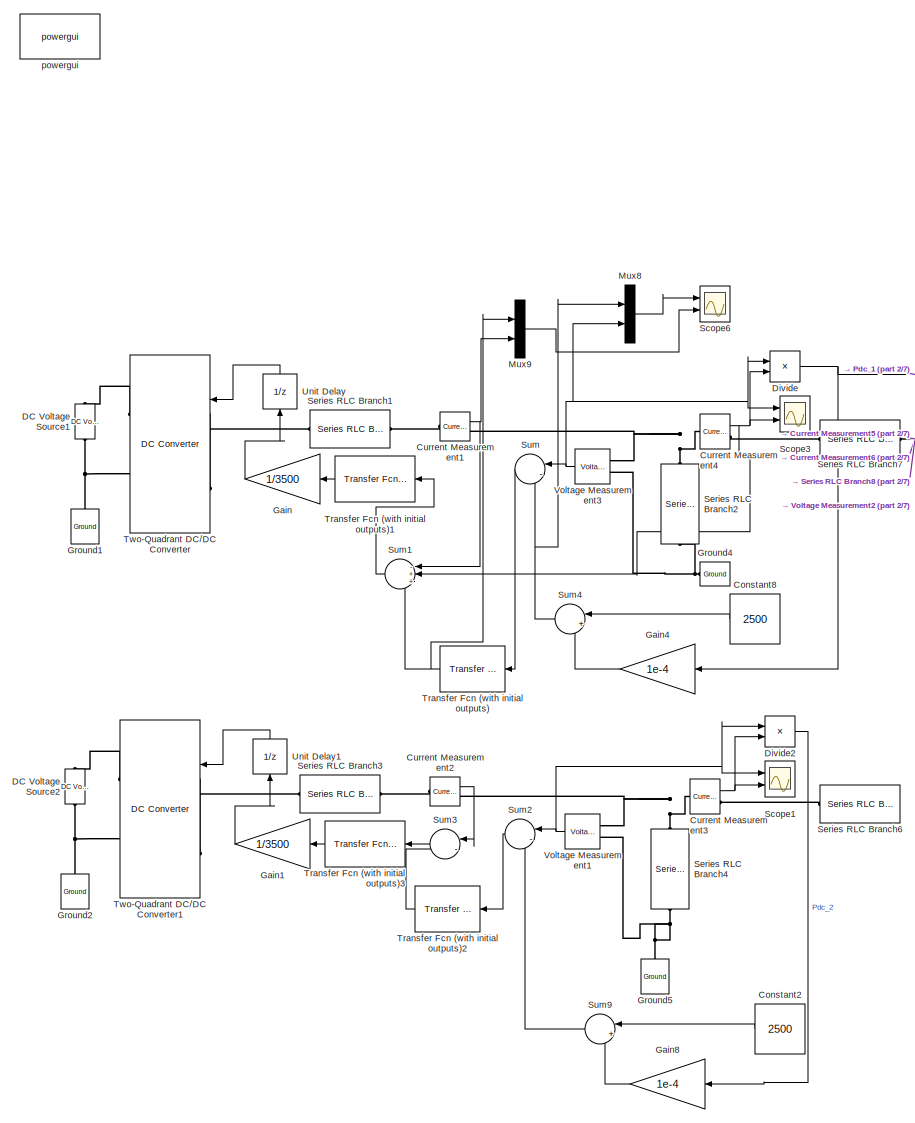
[diagram: root canvas - part 1/7, top left region]
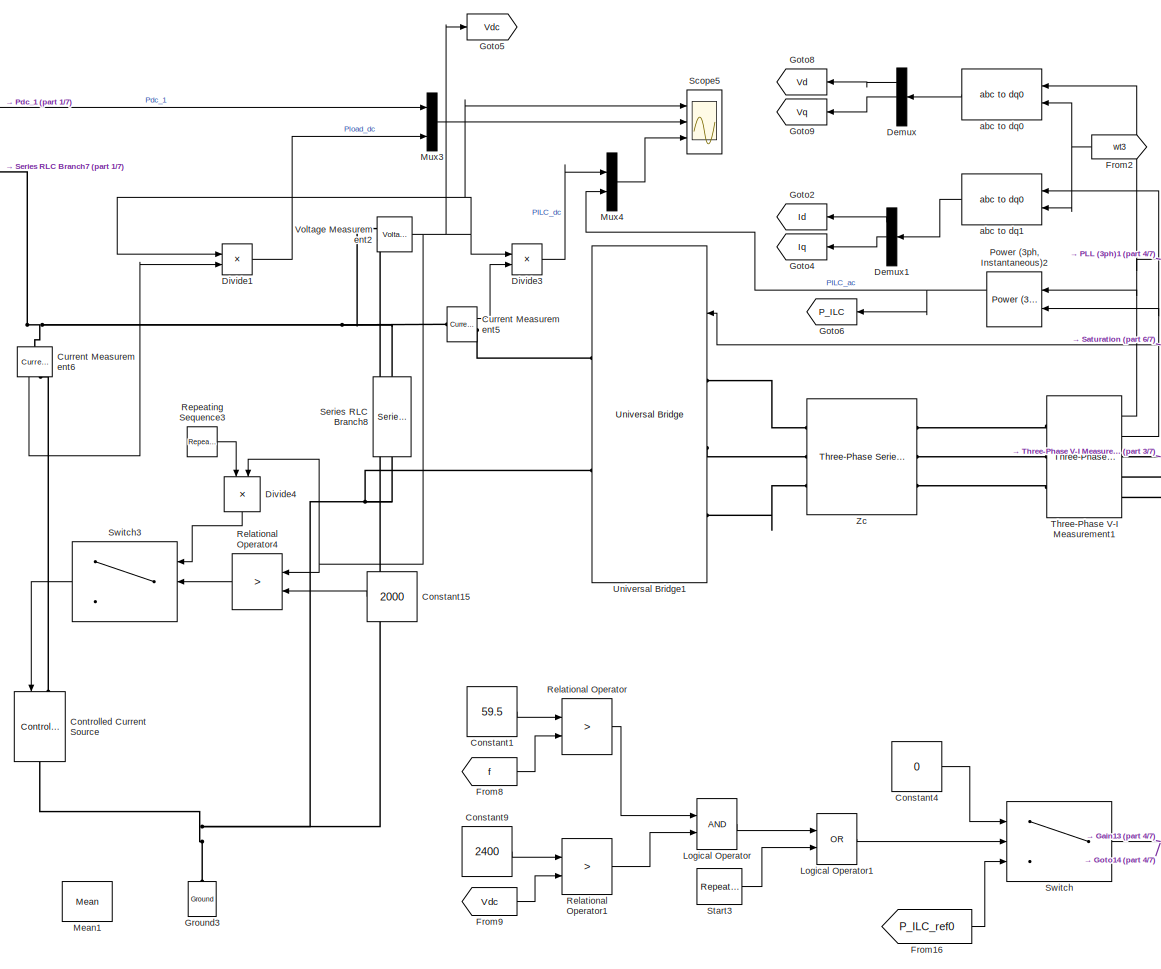
[diagram: root canvas - part 2/7, middle left region]
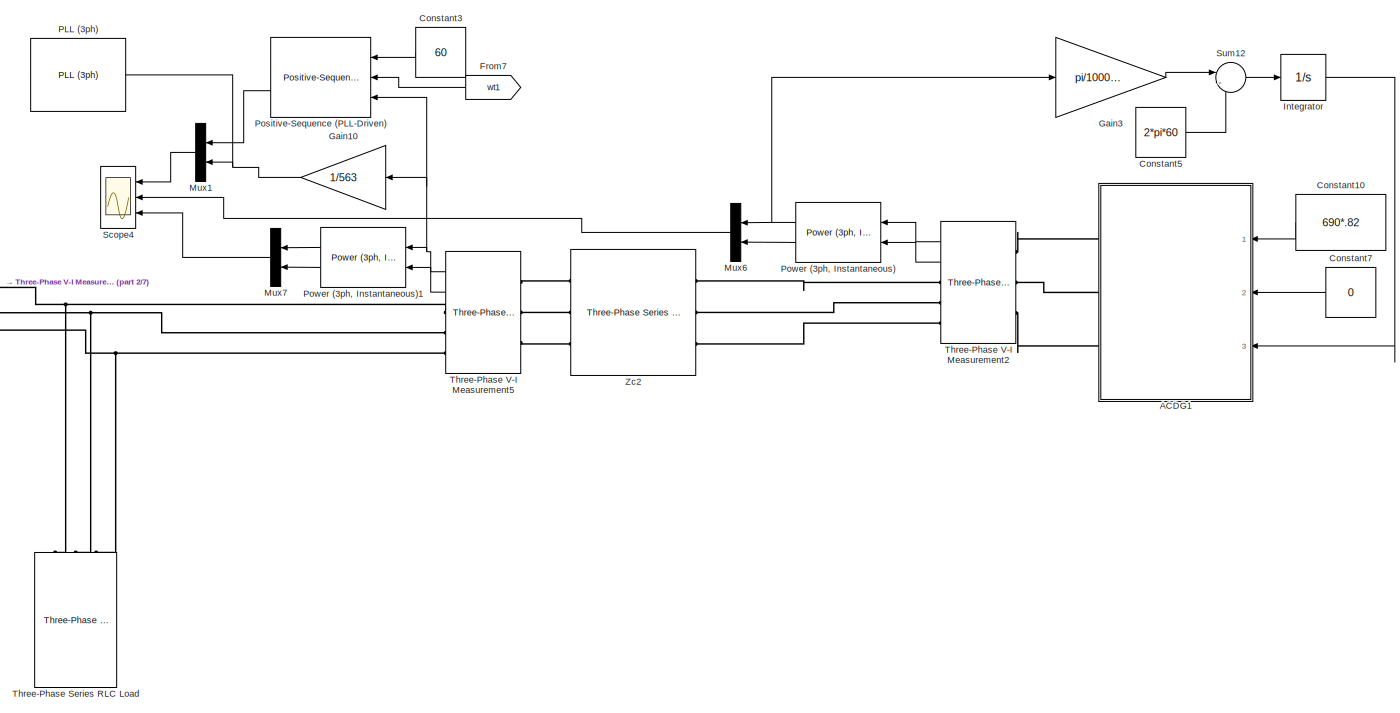
[diagram: root canvas - part 3/7, middle right region]
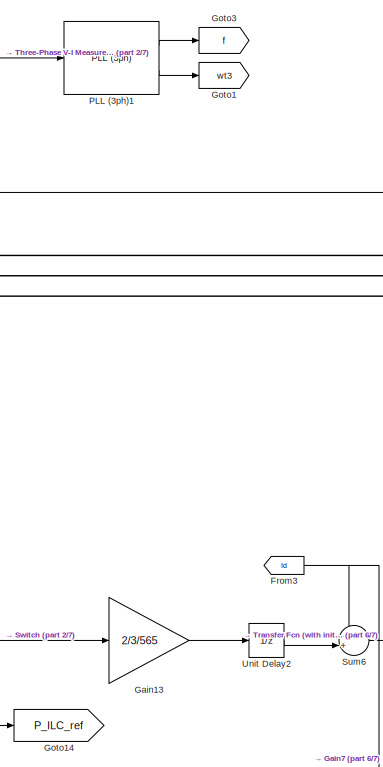
[diagram: root canvas - part 4/7, central region]
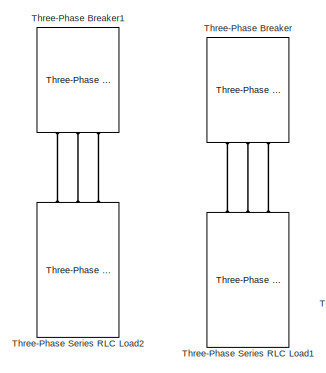
[diagram: root canvas - part 5/7, middle right region]
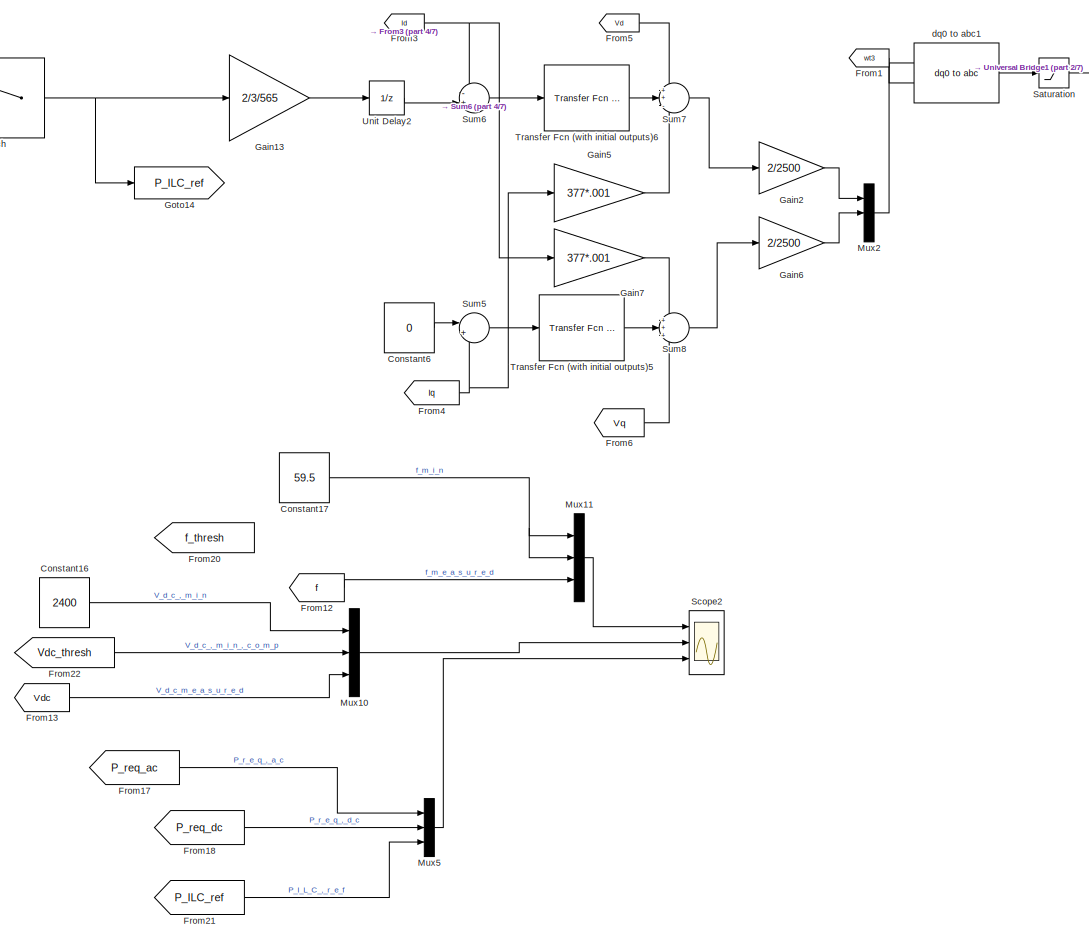
[diagram: root canvas - part 6/7, bottom center region]
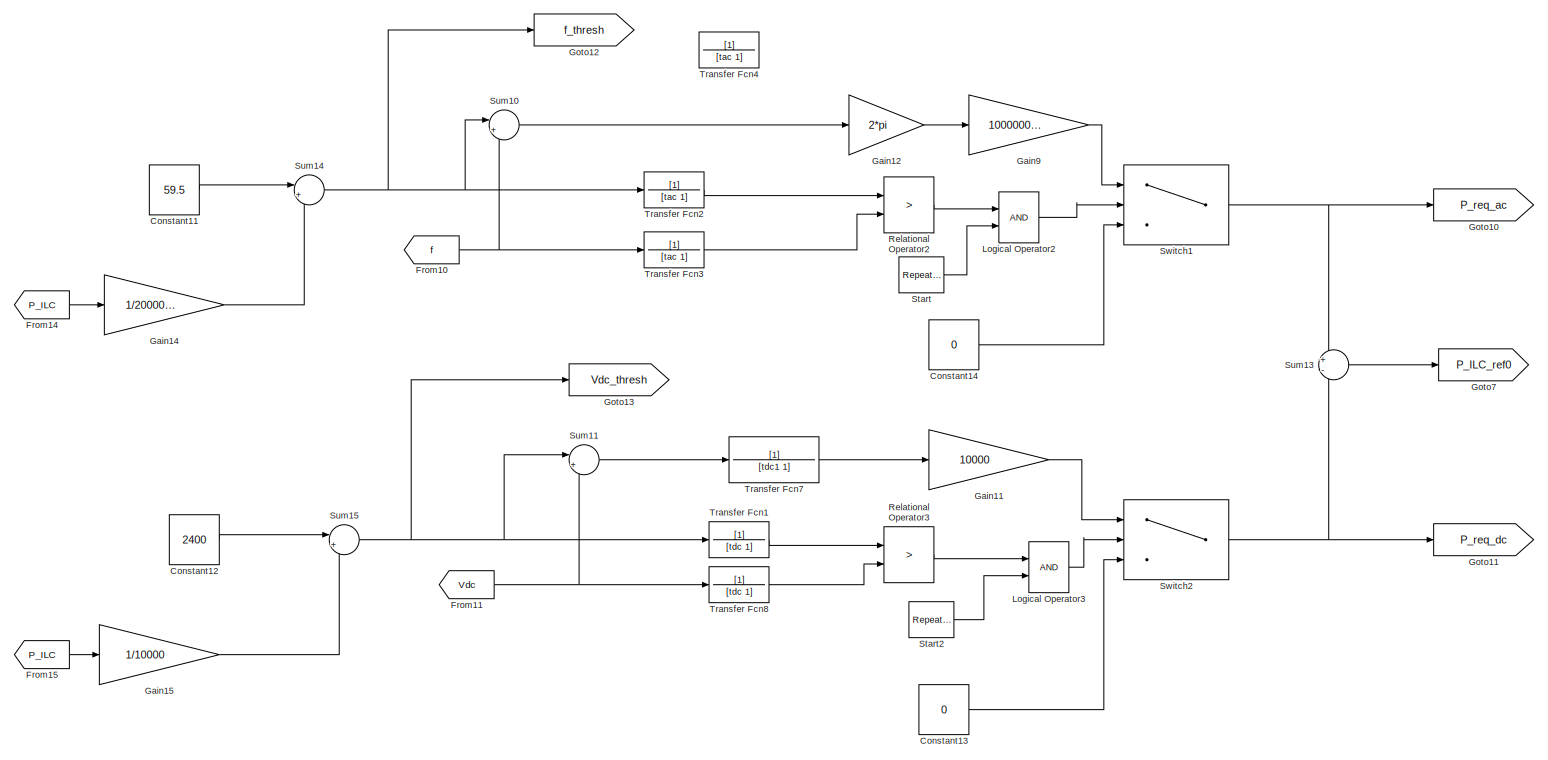
[diagram: root canvas - part 7/7, bottom left region]
MODEL slx_1f1ff15e3eda
KIND model
CONFIG AbsTol = auto
CONFIG FixedStep = auto
CONFIG MaxStep = auto
CONFIG MinStep = auto
CONFIG RelTol = 1e-3
CONFIG SampleTimeConstraint = Unconstrained
CONFIG Solver = ode23tb
CONFIG SolverMode = Auto
CONFIG SolverName = ode23tb
CONFIG StartTime = 0.0
CONFIG StopTime = .3
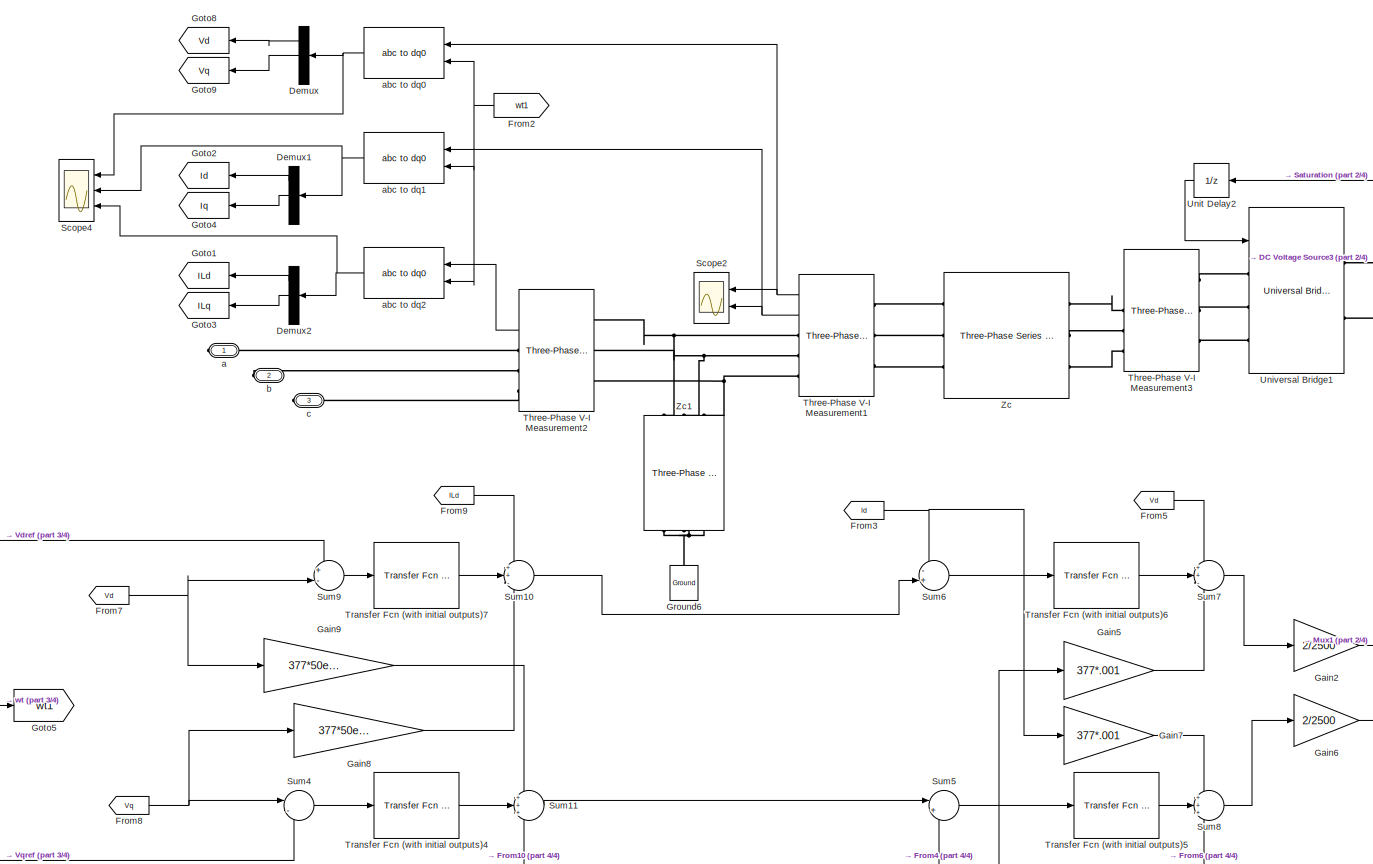
[diagram: ACDG1 - part 1/4, most of the canvas]
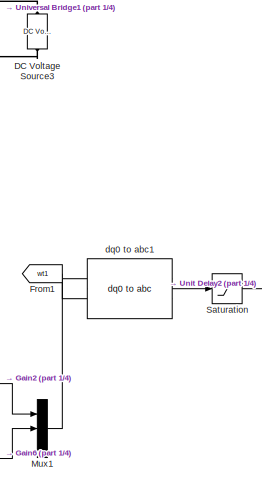
[diagram: ACDG1 - part 2/4, middle right region]
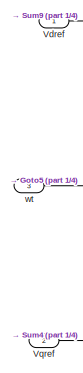
[diagram: ACDG1 - part 3/4, bottom left region]
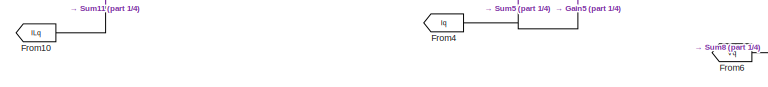
[diagram: ACDG1 - part 4/4, bottom center region]
BLOCK [SubSystem] ACDG1
  Ports = [3, 0, 0, 0, 0, 0, 3]
  RequestExecContextInheritance = off
  Variant = off
BLOCK [Reference] ACDG1/DC Voltage Source3  REF=powerlib/Electrical
Sources/DC Voltage Source
  Ports = [0, 0, 0, 0, 0, 1, 1]
  SourceBlock = powerlib/Electrical\nSources/DC Voltage Source
  SourceType = DC Voltage Source
BLOCK [Demux] ACDG1/Demux
  DisplayOption = bar
  Outputs = 3
  Ports = [1, 3]
BLOCK [Demux] ACDG1/Demux1
  DisplayOption = bar
  Outputs = 3
  Ports = [1, 3]
BLOCK [Demux] ACDG1/Demux2
  DisplayOption = bar
  Outputs = 3
  Ports = [1, 3]
BLOCK [From] ACDG1/From1
  GotoTag = wt1
  TagVisibility = global
BLOCK [From] ACDG1/From10
  GotoTag = ILq
BLOCK [From] ACDG1/From2
  GotoTag = wt1
  TagVisibility = global
BLOCK [From] ACDG1/From3
  GotoTag = Id
BLOCK [From] ACDG1/From4
  GotoTag = Iq
BLOCK [From] ACDG1/From5
  GotoTag = Vd
BLOCK [From] ACDG1/From6
  GotoTag = Vq
BLOCK [From] ACDG1/From7
  GotoTag = Vd
BLOCK [From] ACDG1/From8
  GotoTag = Vq
BLOCK [From] ACDG1/From9
  GotoTag = ILd
BLOCK [Gain] ACDG1/Gain2
  Gain = 2/2500
  OutDataTypeStr = Inherit: Inherit via internal rule
  ParamDataTypeStr = Inherit: Inherit via internal rule
  SaturateOnIntegerOverflow = off
BLOCK [Gain] ACDG1/Gain5
  Gain = 377*.001
  OutDataTypeStr = Inherit: Inherit via internal rule
  ParamDataTypeStr = Inherit: Inherit via internal rule
  SaturateOnIntegerOverflow = off
BLOCK [Gain] ACDG1/Gain6
  Gain = 2/2500
  OutDataTypeStr = Inherit: Inherit via internal rule
  ParamDataTypeStr = Inherit: Inherit via internal rule
  SaturateOnIntegerOverflow = off
BLOCK [Gain] ACDG1/Gain7
  Gain = 377*.001
  OutDataTypeStr = Inherit: Inherit via internal rule
  ParamDataTypeStr = Inherit: Inherit via internal rule
  SaturateOnIntegerOverflow = off
BLOCK [Gain] ACDG1/Gain8
  Gain = 377*50e-6
  OutDataTypeStr = Inherit: Inherit via internal rule
  ParamDataTypeStr = Inherit: Inherit via internal rule
  SaturateOnIntegerOverflow = off
BLOCK [Gain] ACDG1/Gain9
  Gain = 377*50e-6
  OutDataTypeStr = Inherit: Inherit via internal rule
  ParamDataTypeStr = Inherit: Inherit via internal rule
  SaturateOnIntegerOverflow = off
BLOCK [Goto] ACDG1/Goto1
  GotoTag = ILd
BLOCK [Goto] ACDG1/Goto2
  GotoTag = Id
BLOCK [Goto] ACDG1/Goto3
  GotoTag = ILq
BLOCK [Goto] ACDG1/Goto4
  GotoTag = Iq
BLOCK [Goto] ACDG1/Goto5
  GotoTag = wt1
  TagVisibility = global
BLOCK [Goto] ACDG1/Goto8
  GotoTag = Vd
BLOCK [Goto] ACDG1/Goto9
  GotoTag = Vq
BLOCK [Reference] ACDG1/Ground6  REF=powerlib/Elements/Ground
  Ports = [0, 0, 0, 0, 0, 1]
  SourceBlock = powerlib/Elements/Ground
  SourceType = Ground
BLOCK [Mux] ACDG1/Mux1
  DisplayOption = bar
  Inputs = 3
  Ports = [3, 1]
BLOCK [Saturate] ACDG1/Saturation
  InputPortMap = u0
  LowerLimit = -1
  Ports = [1, 1]
  UpperLimit = 1
BLOCK [Scope] ACDG1/Scope2
  NumInputPorts = 2
  Ports = [2]
  ScopeSpecificationString = Simulink.scopes.TimeScopeBlockCfg('CurrentConfiguration', extmgr.ConfigurationSet(extmgr.Configuration('Core','General UI',true),extmgr.Configuration('Core','Source UI',true),extmgr.Configuration('Sources','WiredSimulink',true,'DataLoggingVariableName','ScopeData1','DataLoggingSaveFormat','StructureWithTime','DataLoggingDecimation','1','DataLoggingDecimateData',true),extmgr.Configuration('Visuals'...<+2427ch>
BLOCK [Scope] ACDG1/Scope4
  NumInputPorts = 3
  Ports = [3]
  ScopeSpecificationString = Simulink.scopes.TimeScopeBlockCfg('CurrentConfiguration', extmgr.ConfigurationSet(extmgr.Configuration('Core','General UI',true),extmgr.Configuration('Core','Source UI',true),extmgr.Configuration('Sources','WiredSimulink',true,'DataLoggingVariableName','ScopeData2','DataLoggingSaveFormat','StructureWithTime','DataLoggingDecimation','1','DataLoggingDecimateData',true),extmgr.Configuration('Visuals'...<+2930ch>
BLOCK [Sum] ACDG1/Sum10
  IconShape = round
  InputSameDT = off
  Inputs = ++-
  OutDataTypeStr = Inherit: Inherit via internal rule
  Ports = [3, 1]
  SaturateOnIntegerOverflow = off
BLOCK [Sum] ACDG1/Sum11
  IconShape = round
  InputSameDT = off
  Inputs = +++
  OutDataTypeStr = Inherit: Inherit via internal rule
  Ports = [3, 1]
  SaturateOnIntegerOverflow = off
BLOCK [Sum] ACDG1/Sum4
  IconShape = round
  InputSameDT = off
  Inputs = |-+
  OutDataTypeStr = Inherit: Inherit via internal rule
  Ports = [2, 1]
  SaturateOnIntegerOverflow = off
BLOCK [Sum] ACDG1/Sum5
  IconShape = round
  InputSameDT = off
  Inputs = |+-
  OutDataTypeStr = Inherit: Inherit via internal rule
  Ports = [2, 1]
  SaturateOnIntegerOverflow = off
BLOCK [Sum] ACDG1/Sum6
  IconShape = round
  InputSameDT = off
  Inputs = -+|
  OutDataTypeStr = Inherit: Inherit via internal rule
  Ports = [2, 1]
  SaturateOnIntegerOverflow = off
BLOCK [Sum] ACDG1/Sum7
  IconShape = round
  InputSameDT = off
  Inputs = ++-
  OutDataTypeStr = Inherit: Inherit via internal rule
  Ports = [3, 1]
  SaturateOnIntegerOverflow = off
BLOCK [Sum] ACDG1/Sum8
  IconShape = round
  InputSameDT = off
  Inputs = +++
  OutDataTypeStr = Inherit: Inherit via internal rule
  Ports = [3, 1]
  SaturateOnIntegerOverflow = off
BLOCK [Sum] ACDG1/Sum9
  IconShape = round
  InputSameDT = off
  Inputs = +-|
  OutDataTypeStr = Inherit: Inherit via internal rule
  Ports = [2, 1]
  SaturateOnIntegerOverflow = off
BLOCK [Reference] ACDG1/Three-Phase V-I Measurement1  REF=powerlib/Measurements/Three-Phase
V-I Measurement
  Ports = [0, 2, 0, 0, 0, 3, 3]
  SourceBlock = powerlib/Measurements/Three-Phase\nV-I Measurement
  SourceType = Three-Phase VI Measurement
BLOCK [Reference] ACDG1/Three-Phase V-I Measurement2  REF=powerlib/Measurements/Three-Phase
V-I Measurement
  Ports = [0, 2, 0, 0, 0, 3, 3]
  SourceBlock = powerlib/Measurements/Three-Phase\nV-I Measurement
  SourceType = Three-Phase VI Measurement
BLOCK [Reference] ACDG1/Three-Phase V-I Measurement3  REF=powerlib/Measurements/Three-Phase
V-I Measurement
  Ports = [0, 2, 0, 0, 0, 3, 3]
  SourceBlock = powerlib/Measurements/Three-Phase\nV-I Measurement
  SourceType = Three-Phase VI Measurement
BLOCK [Reference] ACDG1/Transfer Fcn (with initial outputs)4  REF=simulink_extras/Additional
Linear/Transfer Fcn
(with initial outputs)
  Ports = [1, 1]
  SourceBlock = simulink_extras/Additional\nLinear/Transfer Fcn\n(with initial outputs)
  SourceType = Transfer Function with Initial Outputs
BLOCK [Reference] ACDG1/Transfer Fcn (with initial outputs)5  REF=simulink_extras/Additional
Linear/Transfer Fcn
(with initial outputs)
  Ports = [1, 1]
  SourceBlock = simulink_extras/Additional\nLinear/Transfer Fcn\n(with initial outputs)
  SourceType = Transfer Function with Initial Outputs
BLOCK [Reference] ACDG1/Transfer Fcn (with initial outputs)6  REF=simulink_extras/Additional
Linear/Transfer Fcn
(with initial outputs)
  Ports = [1, 1]
  SourceBlock = simulink_extras/Additional\nLinear/Transfer Fcn\n(with initial outputs)
  SourceType = Transfer Function with Initial Outputs
BLOCK [Reference] ACDG1/Transfer Fcn (with initial outputs)7  REF=simulink_extras/Additional
Linear/Transfer Fcn
(with initial outputs)
  Ports = [1, 1]
  SourceBlock = simulink_extras/Additional\nLinear/Transfer Fcn\n(with initial outputs)
  SourceType = Transfer Function with Initial Outputs
BLOCK [UnitDelay] ACDG1/Unit Delay2
  InputProcessing = Elements as channels (sample based)
  SampleTime = 5e-5
BLOCK [Reference] ACDG1/Universal Bridge1  REF=powerlib/Power
Electronics/Universal Bridge
  Ports = [1, 0, 0, 0, 0, 3, 2]
  SourceBlock = powerlib/Power\nElectronics/Universal Bridge
  SourceType = Universal Bridge
BLOCK [Inport] ACDG1/Vdref
  IconDisplay = Port number
BLOCK [Inport] ACDG1/Vqref
  IconDisplay = Port number
  Port = 2
BLOCK [Reference] ACDG1/Zc  REF=powerlib/Elements/Three-Phase
Series RLC Branch
  AttributesFormatString = \n
  Ports = [0, 0, 0, 0, 0, 3, 3]
  SourceBlock = powerlib/Elements/Three-Phase\nSeries RLC Branch
  SourceType = Three-Phase Series RLC Branch
BLOCK [Reference] ACDG1/Zc1  REF=powerlib/Elements/Three-Phase
Series RLC Branch
  AttributesFormatString = \n
  Ports = [0, 0, 0, 0, 0, 3, 3]
  SourceBlock = powerlib/Elements/Three-Phase\nSeries RLC Branch
  SourceType = Three-Phase Series RLC Branch
BLOCK [PMIOPort] ACDG1/a
  Port = 1
  Side = Right
BLOCK [Reference] ACDG1/abc to dq0  REF=powerlib_meascontrol/Transformations/abc to dq0
  Ports = [2, 1]
  SourceBlock = powerlib_meascontrol/Transformations/abc to dq0
  SourceType = abc to dq0 Transformation
BLOCK [Reference] ACDG1/abc to dq1  REF=powerlib_meascontrol/Transformations/abc to dq0
  Ports = [2, 1]
  SourceBlock = powerlib_meascontrol/Transformations/abc to dq0
  SourceType = abc to dq0 Transformation
BLOCK [Reference] ACDG1/abc to dq2  REF=powerlib_meascontrol/Transformations/abc to dq0
  Ports = [2, 1]
  SourceBlock = powerlib_meascontrol/Transformations/abc to dq0
  SourceType = abc to dq0 Transformation
BLOCK [PMIOPort] ACDG1/b
  Port = 2
  Side = Right
BLOCK [PMIOPort] ACDG1/c
  Port = 3
  Side = Right
BLOCK [Reference] ACDG1/dq0 to abc1  REF=powerlib_meascontrol/Transformations/dq0 to abc
  Ports = [2, 1]
  SourceBlock = powerlib_meascontrol/Transformations/dq0 to abc
  SourceType = dq0 to abc Transformation
BLOCK [Inport] ACDG1/wt
  IconDisplay = Port number
  Port = 3
BLOCK [Constant] Constant1
  Value = 59.5
BLOCK [Constant] Constant10
  Value = 690*.82
BLOCK [Constant] Constant11
  Value = 59.5
BLOCK [Constant] Constant12
  Value = 2400
BLOCK [Constant] Constant13
  Value = 0
BLOCK [Constant] Constant14
  Value = 0
BLOCK [Constant] Constant15
  Value = 2000
BLOCK [Constant] Constant16
  Value = 2400
BLOCK [Constant] Constant17
  Value = 59.5
BLOCK [Constant] Constant2
  Value = 2500
BLOCK [Constant] Constant3
  Value = 60
BLOCK [Constant] Constant4
  Value = 0
BLOCK [Constant] Constant5
  Value = 2*pi*60
BLOCK [Constant] Constant6
  Value = 0
BLOCK [Constant] Constant7
  Value = 0
BLOCK [Constant] Constant8
  Value = 2500
BLOCK [Constant] Constant9
  Value = 2400
BLOCK [Reference] Controlled Current Source  REF=powerlib/Electrical
Sources/Controlled Current Source
  Ports = [1, 0, 0, 0, 0, 1, 1]
  SourceBlock = powerlib/Electrical\nSources/Controlled Current Source
  SourceType = Controlled Current Source
BLOCK [Reference] Current Measurement1  REF=powerlib/Measurements/Current Measurement
  Ports = [0, 1, 0, 0, 0, 1, 1]
  SourceBlock = powerlib/Measurements/Current Measurement
  SourceType = Current Measurement
BLOCK [Reference] Current Measurement2  REF=powerlib/Measurements/Current Measurement
  Ports = [0, 1, 0, 0, 0, 1, 1]
  SourceBlock = powerlib/Measurements/Current Measurement
  SourceType = Current Measurement
BLOCK [Reference] Current Measurement3  REF=powerlib/Measurements/Current Measurement
  Ports = [0, 1, 0, 0, 0, 1, 1]
  SourceBlock = powerlib/Measurements/Current Measurement
  SourceType = Current Measurement
BLOCK [Reference] Current Measurement4  REF=powerlib/Measurements/Current Measurement
  Ports = [0, 1, 0, 0, 0, 1, 1]
  SourceBlock = powerlib/Measurements/Current Measurement
  SourceType = Current Measurement
BLOCK [Reference] Current Measurement5  REF=powerlib/Measurements/Current Measurement
  Ports = [0, 1, 0, 0, 0, 1, 1]
  SourceBlock = powerlib/Measurements/Current Measurement
  SourceType = Current Measurement
BLOCK [Reference] Current Measurement6  REF=powerlib/Measurements/Current Measurement
  Ports = [0, 1, 0, 0, 0, 1, 1]
  SourceBlock = powerlib/Measurements/Current Measurement
  SourceType = Current Measurement
BLOCK [Reference] DC Voltage Source1  REF=powerlib/Electrical
Sources/DC Voltage Source
  Ports = [0, 0, 0, 0, 0, 1, 1]
  SourceBlock = powerlib/Electrical\nSources/DC Voltage Source
  SourceType = DC Voltage Source
BLOCK [Reference] DC Voltage Source2  REF=powerlib/Electrical
Sources/DC Voltage Source
  Ports = [0, 0, 0, 0, 0, 1, 1]
  SourceBlock = powerlib/Electrical\nSources/DC Voltage Source
  SourceType = DC Voltage Source
BLOCK [Demux] Demux
  DisplayOption = bar
  Outputs = 3
  Ports = [1, 3]
BLOCK [Demux] Demux1
  DisplayOption = bar
  Outputs = 3
  Ports = [1, 3]
BLOCK [Product] Divide
  InputSameDT = off
  Inputs = **
  OutDataTypeStr = Inherit: Inherit via internal rule
  Ports = [2, 1]
  RndMeth = Floor
  SaturateOnIntegerOverflow = off
BLOCK [Product] Divide1
  InputSameDT = off
  Inputs = **
  OutDataTypeStr = Inherit: Inherit via internal rule
  Ports = [2, 1]
  RndMeth = Floor
  SaturateOnIntegerOverflow = off
BLOCK [Product] Divide2
  InputSameDT = off
  Inputs = **
  OutDataTypeStr = Inherit: Inherit via internal rule
  Ports = [2, 1]
  RndMeth = Floor
  SaturateOnIntegerOverflow = off
BLOCK [Product] Divide3
  InputSameDT = off
  Inputs = **
  OutDataTypeStr = Inherit: Inherit via internal rule
  Ports = [2, 1]
  RndMeth = Floor
  SaturateOnIntegerOverflow = off
BLOCK [Product] Divide4
  InputSameDT = off
  Inputs = */
  OutDataTypeStr = Inherit: Inherit via internal rule
  Ports = [2, 1]
  RndMeth = Floor
  SaturateOnIntegerOverflow = off
BLOCK [From] From1
  GotoTag = wt3
BLOCK [From] From10
  GotoTag = f
BLOCK [From] From11
  GotoTag = Vdc
BLOCK [From] From12
  GotoTag = f
BLOCK [From] From13
  GotoTag = Vdc
BLOCK [From] From14
  GotoTag = P_ILC
BLOCK [From] From15
  GotoTag = P_ILC
BLOCK [From] From16
  GotoTag = P_ILC_ref0
BLOCK [From] From17
  GotoTag = P_req_ac
BLOCK [From] From18
  GotoTag = P_req_dc
BLOCK [From] From2
  GotoTag = wt3
BLOCK [From] From20
  GotoTag = f_thresh
BLOCK [From] From21
  GotoTag = P_ILC_ref
BLOCK [From] From22
  GotoTag = Vdc_thresh
BLOCK [From] From3
  GotoTag = Id
BLOCK [From] From4
  GotoTag = Iq
BLOCK [From] From5
  GotoTag = Vd
BLOCK [From] From6
  GotoTag = Vq
BLOCK [From] From7
  GotoTag = wt1
  TagVisibility = global
BLOCK [From] From8
  GotoTag = f
BLOCK [From] From9
  GotoTag = Vdc
BLOCK [Gain] Gain
  Gain = 1/3500
  OutDataTypeStr = Inherit: Inherit via internal rule
  ParamDataTypeStr = Inherit: Inherit via internal rule
  SaturateOnIntegerOverflow = off
BLOCK [Gain] Gain1
  Gain = 1/3500
  OutDataTypeStr = Inherit: Inherit via internal rule
  ParamDataTypeStr = Inherit: Inherit via internal rule
  SaturateOnIntegerOverflow = off
BLOCK [Gain] Gain10
  Gain = 1/563
  OutDataTypeStr = Inherit: Inherit via internal rule
  ParamDataTypeStr = Inherit: Inherit via internal rule
  SaturateOnIntegerOverflow = off
BLOCK [Gain] Gain11
  Gain = 10000
  OutDataTypeStr = Inherit: Inherit via internal rule
  ParamDataTypeStr = Inherit: Inherit via internal rule
  SaturateOnIntegerOverflow = off
BLOCK [Gain] Gain12
  Gain = 2*pi
  OutDataTypeStr = Inherit: Inherit via internal rule
  ParamDataTypeStr = Inherit: Inherit via internal rule
  SaturateOnIntegerOverflow = off
BLOCK [Gain] Gain13
  Gain = 2/3/565
  OutDataTypeStr = Inherit: Inherit via internal rule
  ParamDataTypeStr = Inherit: Inherit via internal rule
  SaturateOnIntegerOverflow = off
BLOCK [Gain] Gain14
  Gain = 1/2000000
  OutDataTypeStr = Inherit: Inherit via internal rule
  ParamDataTypeStr = Inherit: Inherit via internal rule
  SaturateOnIntegerOverflow = off
BLOCK [Gain] Gain15
  Gain = 1/10000
  OutDataTypeStr = Inherit: Inherit via internal rule
  ParamDataTypeStr = Inherit: Inherit via internal rule
  SaturateOnIntegerOverflow = off
BLOCK [Gain] Gain2
  Gain = 2/2500
  OutDataTypeStr = Inherit: Inherit via internal rule
  ParamDataTypeStr = Inherit: Inherit via internal rule
  SaturateOnIntegerOverflow = off
BLOCK [Gain] Gain3
  Gain = pi/1000000
  OutDataTypeStr = Inherit: Inherit via internal rule
  ParamDataTypeStr = Inherit: Inherit via internal rule
  SaturateOnIntegerOverflow = off
BLOCK [Gain] Gain4
  Gain = 1e-4
  OutDataTypeStr = Inherit: Inherit via internal rule
  ParamDataTypeStr = Inherit: Inherit via internal rule
  SaturateOnIntegerOverflow = off
BLOCK [Gain] Gain5
  Gain = 377*.001
  OutDataTypeStr = Inherit: Inherit via internal rule
  ParamDataTypeStr = Inherit: Inherit via internal rule
  SaturateOnIntegerOverflow = off
BLOCK [Gain] Gain6
  Gain = 2/2500
  OutDataTypeStr = Inherit: Inherit via internal rule
  ParamDataTypeStr = Inherit: Inherit via internal rule
  SaturateOnIntegerOverflow = off
BLOCK [Gain] Gain7
  Gain = 377*.001
  OutDataTypeStr = Inherit: Inherit via internal rule
  ParamDataTypeStr = Inherit: Inherit via internal rule
  SaturateOnIntegerOverflow = off
BLOCK [Gain] Gain8
  Gain = 1e-4
  OutDataTypeStr = Inherit: Inherit via internal rule
  ParamDataTypeStr = Inherit: Inherit via internal rule
  SaturateOnIntegerOverflow = off
BLOCK [Gain] Gain9
  Gain = 1000000/pi
  OutDataTypeStr = Inherit: Inherit via internal rule
  ParamDataTypeStr = Inherit: Inherit via internal rule
  SaturateOnIntegerOverflow = off
BLOCK [Goto] Goto1
  GotoTag = wt3
BLOCK [Goto] Goto10
  GotoTag = P_req_ac
BLOCK [Goto] Goto11
  GotoTag = P_req_dc
BLOCK [Goto] Goto12
  GotoTag = f_thresh
BLOCK [Goto] Goto13
  GotoTag = Vdc_thresh
BLOCK [Goto] Goto14
  GotoTag = P_ILC_ref
BLOCK [Goto] Goto2
  GotoTag = Id
BLOCK [Goto] Goto3
  GotoTag = f
BLOCK [Goto] Goto4
  GotoTag = Iq
BLOCK [Goto] Goto5
  GotoTag = Vdc
BLOCK [Goto] Goto6
  GotoTag = P_ILC
BLOCK [Goto] Goto7
  GotoTag = P_ILC_ref0
BLOCK [Goto] Goto8
  GotoTag = Vd
BLOCK [Goto] Goto9
  GotoTag = Vq
BLOCK [Reference] Ground1  REF=powerlib/Elements/Ground
  Ports = [0, 0, 0, 0, 0, 1]
  SourceBlock = powerlib/Elements/Ground
  SourceType = Ground
BLOCK [Reference] Ground2  REF=powerlib/Elements/Ground
  Ports = [0, 0, 0, 0, 0, 1]
  SourceBlock = powerlib/Elements/Ground
  SourceType = Ground
BLOCK [Reference] Ground3  REF=powerlib/Elements/Ground
  Ports = [0, 0, 0, 0, 0, 1]
  SourceBlock = powerlib/Elements/Ground
  SourceType = Ground
BLOCK [Reference] Ground4  REF=powerlib/Elements/Ground
  Ports = [0, 0, 0, 0, 0, 1]
  SourceBlock = powerlib/Elements/Ground
  SourceType = Ground
BLOCK [Reference] Ground5  REF=powerlib/Elements/Ground
  Ports = [0, 0, 0, 0, 0, 1]
  SourceBlock = powerlib/Elements/Ground
  SourceType = Ground
BLOCK [Integrator] Integrator
  Ports = [1, 1]
BLOCK [Logic] Logical Operator
  AllPortsSameDT = off
  OutDataTypeStr = boolean
  Ports = [2, 1]
BLOCK [Logic] Logical Operator1
  AllPortsSameDT = off
  Operator = OR
  OutDataTypeStr = boolean
  Ports = [2, 1]
BLOCK [Logic] Logical Operator2
  AllPortsSameDT = off
  OutDataTypeStr = boolean
  Ports = [2, 1]
BLOCK [Logic] Logical Operator3
  AllPortsSameDT = off
  OutDataTypeStr = boolean
  Ports = [2, 1]
BLOCK [Reference] Mean1  REF=powerlib_meascontrol/Measurements/Mean
  Ports = [1, 1]
  SourceBlock = powerlib_meascontrol/Measurements/Mean
  SourceType = Mean
BLOCK [Mux] Mux1
  DisplayOption = bar
  Inputs = 2
  Ports = [2, 1]
BLOCK [Mux] Mux10
  DisplayOption = bar
  Inputs = 3
  Ports = [3, 1]
BLOCK [Mux] Mux11
  DisplayOption = bar
  Inputs = 3
  Ports = [3, 1]
BLOCK [Mux] Mux2
  DisplayOption = bar
  Inputs = 3
  Ports = [3, 1]
BLOCK [Mux] Mux3
  DisplayOption = bar
  Inputs = 3
  Ports = [3, 1]
BLOCK [Mux] Mux4
  DisplayOption = bar
  Inputs = 2
  Ports = [2, 1]
BLOCK [Mux] Mux5
  DisplayOption = bar
  Inputs = 3
  Ports = [3, 1]
BLOCK [Mux] Mux6
  DisplayOption = bar
  Inputs = 2
  Ports = [2, 1]
BLOCK [Mux] Mux7
  DisplayOption = bar
  Inputs = 2
  Ports = [2, 1]
BLOCK [Mux] Mux8
  DisplayOption = bar
  Inputs = 2
  Ports = [2, 1]
BLOCK [Mux] Mux9
  DisplayOption = bar
  Inputs = 2
  Ports = [2, 1]
BLOCK [Reference] PLL (3ph)  REF=powerlib_meascontrol/PLL/PLL
(3ph)
  Ports = [1, 2]
  SourceBlock = powerlib_meascontrol/PLL/PLL\n(3ph)
  SourceType = PLL (3ph)
BLOCK [Reference] PLL (3ph)1  REF=powerlib_meascontrol/PLL/PLL
(3ph)
  Ports = [1, 2]
  SourceBlock = powerlib_meascontrol/PLL/PLL\n(3ph)
  SourceType = PLL (3ph)
BLOCK [Reference] Positive-Sequence (PLL-Driven)  REF=powerlib_meascontrol/Measurements/Positive-Sequence
(PLL-Driven)
  Ports = [3, 2]
  SourceBlock = powerlib_meascontrol/Measurements/Positive-Sequence\n(PLL-Driven)
  SourceType = Positive-Sequence (PLL-Driven)
BLOCK [Reference] Power (3ph, Instantaneous)  REF=powerlib_meascontrol/Measurements/Power
(3ph, Instantaneous)
  Ports = [2, 2]
  SourceBlock = powerlib_meascontrol/Measurements/Power\n(3ph, Instantaneous)
  SourceType = Power (3ph, Instantaneous)
BLOCK [Reference] Power (3ph, Instantaneous)1  REF=powerlib_meascontrol/Measurements/Power
(3ph, Instantaneous)
  Ports = [2, 2]
  SourceBlock = powerlib_meascontrol/Measurements/Power\n(3ph, Instantaneous)
  SourceType = Power (3ph, Instantaneous)
BLOCK [Reference] Power (3ph, Instantaneous)2  REF=powerlib_meascontrol/Measurements/Power
(3ph, Instantaneous)
  Ports = [2, 2]
  SourceBlock = powerlib_meascontrol/Measurements/Power\n(3ph, Instantaneous)
  SourceType = Power (3ph, Instantaneous)
BLOCK [RelationalOperator] Relational Operator
  InputSameDT = off
  Operator = >
  OutDataTypeStr = boolean
  Ports = [2, 1]
BLOCK [RelationalOperator] Relational Operator1
  InputSameDT = off
  Operator = >
  OutDataTypeStr = boolean
  Ports = [2, 1]
BLOCK [RelationalOperator] Relational Operator2
  InputSameDT = off
  Operator = >
  OutDataTypeStr = boolean
  Ports = [2, 1]
BLOCK [RelationalOperator] Relational Operator3
  InputSameDT = off
  Operator = >
  OutDataTypeStr = boolean
  Ports = [2, 1]
BLOCK [RelationalOperator] Relational Operator4
  InputSameDT = off
  Operator = >
  OutDataTypeStr = boolean
  Ports = [2, 1]
BLOCK [Reference] Repeating Sequence3  REF=simulink/Sources/Repeating
Sequence
  Ports = [0, 1]
  SourceBlock = simulink/Sources/Repeating\nSequence
  SourceType = Repeating table
BLOCK [Saturate] Saturation
  InputPortMap = u0
  LowerLimit = -1
  Ports = [1, 1]
  UpperLimit = 1
BLOCK [Scope] Scope1
  NumInputPorts = 2
  Ports = [2]
  ScopeSpecificationString = Simulink.scopes.TimeScopeBlockCfg('CurrentConfiguration', extmgr.ConfigurationSet(extmgr.Configuration('Core','General UI',true),extmgr.Configuration('Core','Source UI',true),extmgr.Configuration('Sources','WiredSimulink',true,'DataLoggingVariableName','voltage3ph','DataLoggingSaveFormat','StructureWithTime','DataLoggingDecimation','1','DataLoggingDecimateData',true),extmgr.Configuration('Visuals'...<+2213ch>
BLOCK [Scope] Scope2
  NumInputPorts = 3
  Ports = [3]
  ScopeSpecificationString = Simulink.scopes.TimeScopeBlockCfg('CurrentConfiguration', extmgr.ConfigurationSet(extmgr.Configuration('Core','General UI',true,'FigureColor',[1 1 1]),extmgr.Configuration('Core','Source UI',true),extmgr.Configuration('Sources','WiredSimulink',true,'DataLoggingVariableName','Data','DataLogging',true,'DataLoggingSaveFormat','StructureWithTime'),extmgr.Configuration('Visuals','Time Domain',true,'Ser...<+4297ch>
BLOCK [Scope] Scope3
  NumInputPorts = 2
  Ports = [2]
  ScopeSpecificationString = Simulink.scopes.TimeScopeBlockCfg('CurrentConfiguration', extmgr.ConfigurationSet(extmgr.Configuration('Core','General UI',true),extmgr.Configuration('Core','Source UI',true),extmgr.Configuration('Sources','WiredSimulink',true,'DataLoggingVariableName','voltage3ph2','DataLoggingSaveFormat','StructureWithTime','DataLoggingDecimation','1','DataLoggingDecimateData',true),extmgr.Configuration('Visuals...<+2238ch>
BLOCK [Scope] Scope4
  NumInputPorts = 3
  Ports = [3]
  ScopeSpecificationString = Simulink.scopes.TimeScopeBlockCfg('CurrentConfiguration', extmgr.ConfigurationSet(extmgr.Configuration('Core','General UI',true),extmgr.Configuration('Core','Source UI',true),extmgr.Configuration('Sources','WiredSimulink',true,'DataLoggingVariableName','ScopeData3','DataLoggingSaveFormat','StructureWithTime','DataLoggingDecimation','1','DataLoggingDecimateData',true),extmgr.Configuration('Visuals'...<+2995ch>
BLOCK [Scope] Scope5
  NumInputPorts = 3
  Ports = [3]
  ScopeSpecificationString = Simulink.scopes.TimeScopeBlockCfg('CurrentConfiguration', extmgr.ConfigurationSet(extmgr.Configuration('Core','General UI',true),extmgr.Configuration('Core','Source UI',true),extmgr.Configuration('Sources','WiredSimulink',true,'DataLoggingVariableName','ScopeData2'),extmgr.Configuration('Visuals','Time Domain',true,'SerializedDisplays',{struct('MinYLimReal','1048.60491','MaxYLimReal','2677.91262',...<+2796ch>
BLOCK [Scope] Scope6
  NumInputPorts = 2
  Ports = [2]
  ScopeSpecificationString = Simulink.scopes.TimeScopeBlockCfg('CurrentConfiguration', extmgr.ConfigurationSet(extmgr.Configuration('Core','General UI',true),extmgr.Configuration('Core','Source UI',true),extmgr.Configuration('Sources','WiredSimulink',true,'DataLoggingVariableName','ScopeData1'),extmgr.Configuration('Visuals','Time Domain',true,'SerializedDisplays',{struct('MinYLimReal','2337.10407','MaxYLimReal','2549.96645',...<+2114ch>
BLOCK [Reference] Series RLC Branch1  REF=powerlib/Elements/Series RLC Branch
  Ports = [0, 0, 0, 0, 0, 1, 1]
  SourceBlock = powerlib/Elements/Series RLC Branch
  SourceType = Series RLC Branch
BLOCK [Reference] Series RLC Branch2  REF=powerlib/Elements/Series RLC Branch
  Ports = [0, 0, 0, 0, 0, 1, 1]
  SourceBlock = powerlib/Elements/Series RLC Branch
  SourceType = Series RLC Branch
BLOCK [Reference] Series RLC Branch3  REF=powerlib/Elements/Series RLC Branch
  Ports = [0, 0, 0, 0, 0, 1, 1]
  SourceBlock = powerlib/Elements/Series RLC Branch
  SourceType = Series RLC Branch
BLOCK [Reference] Series RLC Branch4  REF=powerlib/Elements/Series RLC Branch
  Ports = [0, 0, 0, 0, 0, 1, 1]
  SourceBlock = powerlib/Elements/Series RLC Branch
  SourceType = Series RLC Branch
BLOCK [Reference] Series RLC Branch6  REF=powerlib/Elements/Series RLC Branch
  Ports = [0, 0, 0, 0, 0, 1, 1]
  SourceBlock = powerlib/Elements/Series RLC Branch
  SourceType = Series RLC Branch
BLOCK [Reference] Series RLC Branch7  REF=powerlib/Elements/Series RLC Branch
  Ports = [0, 0, 0, 0, 0, 1, 1]
  SourceBlock = powerlib/Elements/Series RLC Branch
  SourceType = Series RLC Branch
BLOCK [Reference] Series RLC Branch8  REF=powerlib/Elements/Series RLC Branch
  Ports = [0, 0, 0, 0, 0, 1, 1]
  SourceBlock = powerlib/Elements/Series RLC Branch
  SourceType = Series RLC Branch
BLOCK [Reference] Start  REF=simulink/Sources/Repeating
Sequence
  Ports = [0, 1]
  SourceBlock = simulink/Sources/Repeating\nSequence
  SourceType = Repeating table
BLOCK [Reference] Start2  REF=simulink/Sources/Repeating
Sequence
  Ports = [0, 1]
  SourceBlock = simulink/Sources/Repeating\nSequence
  SourceType = Repeating table
BLOCK [Reference] Start3  REF=simulink/Sources/Repeating
Sequence
  Ports = [0, 1]
  SourceBlock = simulink/Sources/Repeating\nSequence
  SourceType = Repeating table
BLOCK [Sum] Sum
  IconShape = round
  InputSameDT = off
  Inputs = |-+
  OutDataTypeStr = Inherit: Inherit via internal rule
  Ports = [2, 1]
  SaturateOnIntegerOverflow = off
BLOCK [Sum] Sum1
  IconShape = round
  InputSameDT = off
  Inputs = -++
  OutDataTypeStr = Inherit: Inherit via internal rule
  Ports = [3, 1]
  SaturateOnIntegerOverflow = off
BLOCK [Sum] Sum10
  IconShape = round
  InputSameDT = off
  Inputs = |+-
  OutDataTypeStr = Inherit: Inherit via internal rule
  Ports = [2, 1]
  SaturateOnIntegerOverflow = off
BLOCK [Sum] Sum11
  IconShape = round
  InputSameDT = off
  Inputs = |+-
  OutDataTypeStr = Inherit: Inherit via internal rule
  Ports = [2, 1]
  SaturateOnIntegerOverflow = off
BLOCK [Sum] Sum12
  IconShape = round
  InputSameDT = off
  Inputs = |-+
  OutDataTypeStr = Inherit: Inherit via internal rule
  Ports = [2, 1]
  SaturateOnIntegerOverflow = off
BLOCK [Sum] Sum13
  IconShape = round
  InputSameDT = off
  Inputs = +-
  OutDataTypeStr = Inherit: Inherit via internal rule
  Ports = [2, 1]
  SaturateOnIntegerOverflow = off
BLOCK [Sum] Sum14
  IconShape = round
  InputSameDT = off
  Inputs = |++
  OutDataTypeStr = Inherit: Inherit via internal rule
  Ports = [2, 1]
  SaturateOnIntegerOverflow = off
BLOCK [Sum] Sum15
  IconShape = round
  InputSameDT = off
  Inputs = |+-
  OutDataTypeStr = Inherit: Inherit via internal rule
  Ports = [2, 1]
  SaturateOnIntegerOverflow = off
BLOCK [Sum] Sum2
  IconShape = round
  InputSameDT = off
  Inputs = |-+
  OutDataTypeStr = Inherit: Inherit via internal rule
  Ports = [2, 1]
  SaturateOnIntegerOverflow = off
BLOCK [Sum] Sum3
  IconShape = round
  InputSameDT = off
  Inputs = |-+
  OutDataTypeStr = Inherit: Inherit via internal rule
  Ports = [2, 1]
  SaturateOnIntegerOverflow = off
BLOCK [Sum] Sum4
  IconShape = round
  InputSameDT = off
  Inputs = |+-
  OutDataTypeStr = Inherit: Inherit via internal rule
  Ports = [2, 1]
  SaturateOnIntegerOverflow = off
BLOCK [Sum] Sum5
  IconShape = round
  InputSameDT = off
  Inputs = |+-
  OutDataTypeStr = Inherit: Inherit via internal rule
  Ports = [2, 1]
  SaturateOnIntegerOverflow = off
BLOCK [Sum] Sum6
  IconShape = round
  InputSameDT = off
  Inputs = -+|
  OutDataTypeStr = Inherit: Inherit via internal rule
  Ports = [2, 1]
  SaturateOnIntegerOverflow = off
BLOCK [Sum] Sum7
  IconShape = round
  InputSameDT = off
  Inputs = ++-
  OutDataTypeStr = Inherit: Inherit via internal rule
  Ports = [3, 1]
  SaturateOnIntegerOverflow = off
BLOCK [Sum] Sum8
  IconShape = round
  InputSameDT = off
  Inputs = +++
  OutDataTypeStr = Inherit: Inherit via internal rule
  Ports = [3, 1]
  SaturateOnIntegerOverflow = off
BLOCK [Sum] Sum9
  IconShape = round
  InputSameDT = off
  Inputs = |+-
  OutDataTypeStr = Inherit: Inherit via internal rule
  Ports = [2, 1]
  SaturateOnIntegerOverflow = off
BLOCK [Switch] Switch
  Criteria = u2 > Threshold
  InputSameDT = off
  SaturateOnIntegerOverflow = off
  Threshold = .5
BLOCK [Switch] Switch1
  Criteria = u2 > Threshold
  InputSameDT = off
  SaturateOnIntegerOverflow = off
  Threshold = .5
BLOCK [Switch] Switch2
  Criteria = u2 > Threshold
  InputSameDT = off
  SaturateOnIntegerOverflow = off
  Threshold = .5
BLOCK [Switch] Switch3
  Criteria = u2 > Threshold
  InputSameDT = off
  SaturateOnIntegerOverflow = off
  Threshold = .5
BLOCK [Reference] Three-Phase Breaker  REF=powerlib/Elements/Three-Phase Breaker
  Ports = [0, 0, 0, 0, 0, 3, 3]
  SourceBlock = powerlib/Elements/Three-Phase Breaker
  SourceType = Three-Phase Breaker
BLOCK [Reference] Three-Phase Breaker1  REF=powerlib/Elements/Three-Phase Breaker
  Ports = [0, 0, 0, 0, 0, 3, 3]
  SourceBlock = powerlib/Elements/Three-Phase Breaker
  SourceType = Three-Phase Breaker
BLOCK [Reference] Three-Phase Series RLC Load  REF=powerlib/Elements/Three-Phase
Series RLC Load
  AttributesFormatString = \n
  Ports = [0, 0, 0, 0, 0, 3]
  SourceBlock = powerlib/Elements/Three-Phase\nSeries RLC Load
  SourceType = Three-Phase Series RLC Load
BLOCK [Reference] Three-Phase Series RLC Load1  REF=powerlib/Elements/Three-Phase
Series RLC Load
  AttributesFormatString = \n
  Ports = [0, 0, 0, 0, 0, 3]
  SourceBlock = powerlib/Elements/Three-Phase\nSeries RLC Load
  SourceType = Three-Phase Series RLC Load
BLOCK [Reference] Three-Phase Series RLC Load2  REF=powerlib/Elements/Three-Phase
Series RLC Load
  AttributesFormatString = \n
  Ports = [0, 0, 0, 0, 0, 3]
  SourceBlock = powerlib/Elements/Three-Phase\nSeries RLC Load
  SourceType = Three-Phase Series RLC Load
BLOCK [Reference] Three-Phase V-I Measurement1  REF=powerlib/Measurements/Three-Phase
V-I Measurement
  Ports = [0, 2, 0, 0, 0, 3, 3]
  SourceBlock = powerlib/Measurements/Three-Phase\nV-I Measurement
  SourceType = Three-Phase VI Measurement
BLOCK [Reference] Three-Phase V-I Measurement2  REF=powerlib/Measurements/Three-Phase
V-I Measurement
  Ports = [0, 2, 0, 0, 0, 3, 3]
  SourceBlock = powerlib/Measurements/Three-Phase\nV-I Measurement
  SourceType = Three-Phase VI Measurement
BLOCK [Reference] Three-Phase V-I Measurement5  REF=powerlib/Measurements/Three-Phase
V-I Measurement
  Ports = [0, 2, 0, 0, 0, 3, 3]
  SourceBlock = powerlib/Measurements/Three-Phase\nV-I Measurement
  SourceType = Three-Phase VI Measurement
BLOCK [Reference] Transfer Fcn (with initial outputs)  REF=simulink_extras/Additional
Linear/Transfer Fcn
(with initial outputs)
  Ports = [1, 1]
  SourceBlock = simulink_extras/Additional\nLinear/Transfer Fcn\n(with initial outputs)
  SourceType = Transfer Function with Initial Outputs
BLOCK [Reference] Transfer Fcn (with initial outputs)1  REF=simulink_extras/Additional
Linear/Transfer Fcn
(with initial outputs)
  Ports = [1, 1]
  SourceBlock = simulink_extras/Additional\nLinear/Transfer Fcn\n(with initial outputs)
  SourceType = Transfer Function with Initial Outputs
BLOCK [Reference] Transfer Fcn (with initial outputs)2  REF=simulink_extras/Additional
Linear/Transfer Fcn
(with initial outputs)
  Ports = [1, 1]
  SourceBlock = simulink_extras/Additional\nLinear/Transfer Fcn\n(with initial outputs)
  SourceType = Transfer Function with Initial Outputs
BLOCK [Reference] Transfer Fcn (with initial outputs)3  REF=simulink_extras/Additional
Linear/Transfer Fcn
(with initial outputs)
  Ports = [1, 1]
  SourceBlock = simulink_extras/Additional\nLinear/Transfer Fcn\n(with initial outputs)
  SourceType = Transfer Function with Initial Outputs
BLOCK [Reference] Transfer Fcn (with initial outputs)5  REF=simulink_extras/Additional
Linear/Transfer Fcn
(with initial outputs)
  Ports = [1, 1]
  SourceBlock = simulink_extras/Additional\nLinear/Transfer Fcn\n(with initial outputs)
  SourceType = Transfer Function with Initial Outputs
BLOCK [Reference] Transfer Fcn (with initial outputs)6  REF=simulink_extras/Additional
Linear/Transfer Fcn
(with initial outputs)
  Ports = [1, 1]
  SourceBlock = simulink_extras/Additional\nLinear/Transfer Fcn\n(with initial outputs)
  SourceType = Transfer Function with Initial Outputs
BLOCK [TransferFcn] Transfer Fcn1
  Denominator = [tdc 1]
BLOCK [TransferFcn] Transfer Fcn2
  Denominator = [tac 1]
BLOCK [TransferFcn] Transfer Fcn3
  Denominator = [tac 1]
BLOCK [TransferFcn] Transfer Fcn4
  Denominator = [tac 1]
BLOCK [TransferFcn] Transfer Fcn7
  Denominator = [tdc1 1]
BLOCK [TransferFcn] Transfer Fcn8
  Denominator = [tdc 1]
BLOCK [Reference] Two-Quadrant DC//DC Converter  REF=powerlib/Power
Electronics/Two-Quadrant
DC//DC Converter
  AttributesFormatString = %<ModelType>
  Ports = [2, 0, 0, 0, 0, 1, 2]
  SourceBlock = powerlib/Power\nElectronics/Two-Quadrant\nDC//DC Converter
  SourceType = Two-Quadrant DC/DC Converter
BLOCK [Reference] Two-Quadrant DC//DC Converter1  REF=powerlib/Power
Electronics/Two-Quadrant
DC//DC Converter
  AttributesFormatString = %<ModelType>
  Ports = [2, 0, 0, 0, 0, 1, 2]
  SourceBlock = powerlib/Power\nElectronics/Two-Quadrant\nDC//DC Converter
  SourceType = Two-Quadrant DC/DC Converter
BLOCK [UnitDelay] Unit Delay
  InputProcessing = Elements as channels (sample based)
  SampleTime = 5e-5
BLOCK [UnitDelay] Unit Delay1
  InputProcessing = Elements as channels (sample based)
  SampleTime = 5e-5
BLOCK [UnitDelay] Unit Delay2
  InputProcessing = Elements as channels (sample based)
  SampleTime = 5e-5
BLOCK [Reference] Universal Bridge1  REF=powerlib/Power
Electronics/Universal Bridge
  Ports = [1, 0, 0, 0, 0, 3, 2]
  SourceBlock = powerlib/Power\nElectronics/Universal Bridge
  SourceType = Universal Bridge
BLOCK [Reference] Voltage Measurement1  REF=powerlib/Measurements/Voltage Measurement
  Ports = [0, 1, 0, 0, 0, 2]
  SourceBlock = powerlib/Measurements/Voltage Measurement
  SourceType = Voltage Measurement
BLOCK [Reference] Voltage Measurement2  REF=powerlib/Measurements/Voltage Measurement
  Ports = [0, 1, 0, 0, 0, 2]
  SourceBlock = powerlib/Measurements/Voltage Measurement
  SourceType = Voltage Measurement
BLOCK [Reference] Voltage Measurement3  REF=powerlib/Measurements/Voltage Measurement
  Ports = [0, 1, 0, 0, 0, 2]
  SourceBlock = powerlib/Measurements/Voltage Measurement
  SourceType = Voltage Measurement
BLOCK [Reference] Zc  REF=powerlib/Elements/Three-Phase
Series RLC Branch
  AttributesFormatString = \n
  Ports = [0, 0, 0, 0, 0, 3, 3]
  SourceBlock = powerlib/Elements/Three-Phase\nSeries RLC Branch
  SourceType = Three-Phase Series RLC Branch
BLOCK [Reference] Zc2  REF=powerlib/Elements/Three-Phase
Series RLC Branch
  AttributesFormatString = \n
  Ports = [0, 0, 0, 0, 0, 3, 3]
  SourceBlock = powerlib/Elements/Three-Phase\nSeries RLC Branch
  SourceType = Three-Phase Series RLC Branch
BLOCK [Reference] abc to dq0  REF=powerlib_meascontrol/Transformations/abc to dq0
  Ports = [2, 1]
  SourceBlock = powerlib_meascontrol/Transformations/abc to dq0
  SourceType = abc to dq0 Transformation
BLOCK [Reference] abc to dq1  REF=powerlib_meascontrol/Transformations/abc to dq0
  Ports = [2, 1]
  SourceBlock = powerlib_meascontrol/Transformations/abc to dq0
  SourceType = abc to dq0 Transformation
BLOCK [Reference] dq0 to abc1  REF=powerlib_meascontrol/Transformations/dq0 to abc
  Ports = [2, 1]
  SourceBlock = powerlib_meascontrol/Transformations/dq0 to abc
  SourceType = dq0 to abc Transformation
BLOCK [Reference] powergui  REF=powerlib/powergui
  Ports = []
  Priority = 2
  SourceBlock = powerlib/powergui
  SourceType = PSB option menu block
  UserDataPersistent = on
LINE ACDG1/Demux1:1 -> ACDG1/Goto2:1
LINE ACDG1/Demux1:2 -> ACDG1/Goto4:1
LINE ACDG1/Demux2:1 -> ACDG1/Goto1:1
LINE ACDG1/Demux2:2 -> ACDG1/Goto3:1
LINE ACDG1/Demux:1 -> ACDG1/Goto8:1
LINE ACDG1/Demux:2 -> ACDG1/Goto9:1
LINE ACDG1/From10:1 -> ACDG1/Sum11:3
LINE ACDG1/From1:1 -> ACDG1/dq0 to abc1:2
NET ACDG1/From2:1 -> ACDG1/abc to dq0:2, ACDG1/abc to dq1:2, ACDG1/abc to dq2:2
NET ACDG1/From3:1 -> ACDG1/Gain7:1, ACDG1/Sum6:1
NET ACDG1/From4:1 -> ACDG1/Gain5:1, ACDG1/Sum5:2
LINE ACDG1/From5:1 -> ACDG1/Sum7:1
LINE ACDG1/From6:1 -> ACDG1/Sum8:3
NET ACDG1/From7:1 -> ACDG1/Gain9:1, ACDG1/Sum9:2
NET ACDG1/From8:1 -> ACDG1/Gain8:1, ACDG1/Sum4:1
LINE ACDG1/From9:1 -> ACDG1/Sum10:1
LINE ACDG1/Gain2:1 -> ACDG1/Mux1:1
LINE ACDG1/Gain5:1 -> ACDG1/Sum7:3
LINE ACDG1/Gain6:1 -> ACDG1/Mux1:2
LINE ACDG1/Gain7:1 -> ACDG1/Sum8:1
LINE ACDG1/Gain8:1 -> ACDG1/Sum10:3
LINE ACDG1/Gain9:1 -> ACDG1/Sum11:1
LINE ACDG1/Mux1:1 -> ACDG1/dq0 to abc1:1
LINE ACDG1/Saturation:1 -> ACDG1/Unit Delay2:1
LINE ACDG1/Sum10:1 -> ACDG1/Sum6:2
LINE ACDG1/Sum11:1 -> ACDG1/Sum5:1
LINE ACDG1/Sum4:1 -> ACDG1/Transfer Fcn (with initial outputs)4:1
LINE ACDG1/Sum5:1 -> ACDG1/Transfer Fcn (with initial outputs)5:1
LINE ACDG1/Sum6:1 -> ACDG1/Transfer Fcn (with initial outputs)6:1
LINE ACDG1/Sum7:1 -> ACDG1/Gain2:1
LINE ACDG1/Sum8:1 -> ACDG1/Gain6:1
LINE ACDG1/Sum9:1 -> ACDG1/Transfer Fcn (with initial outputs)7:1
NET ACDG1/Three-Phase V-I Measurement1:1 -> ACDG1/Scope2:1, ACDG1/abc to dq0:1
NET ACDG1/Three-Phase V-I Measurement1:2 -> ACDG1/Scope2:2, ACDG1/abc to dq1:1
LINE ACDG1/Three-Phase V-I Measurement2:2 -> ACDG1/abc to dq2:1
LINE ACDG1/Transfer Fcn (with initial outputs)4:1 -> ACDG1/Sum11:2
LINE ACDG1/Transfer Fcn (with initial outputs)5:1 -> ACDG1/Sum8:2
LINE ACDG1/Transfer Fcn (with initial outputs)6:1 -> ACDG1/Sum7:2
LINE ACDG1/Transfer Fcn (with initial outputs)7:1 -> ACDG1/Sum10:2
LINE ACDG1/Unit Delay2:1 -> ACDG1/Universal Bridge1:1
LINE ACDG1/Vdref:1 -> ACDG1/Sum9:1
LINE ACDG1/Vqref:1 -> ACDG1/Sum4:2
NET ACDG1/abc to dq0:1 -> ACDG1/Demux:1, ACDG1/Scope4:1
NET ACDG1/abc to dq1:1 -> ACDG1/Demux1:1, ACDG1/Scope4:2
NET ACDG1/abc to dq2:1 -> ACDG1/Demux2:1, ACDG1/Scope4:3
LINE ACDG1/dq0 to abc1:1 -> ACDG1/Saturation:1
LINE ACDG1/wt:1 -> ACDG1/Goto5:1
LINE Constant10:1 -> ACDG1:1
LINE Constant11:1 -> Sum14:1
LINE Constant12:1 -> Sum15:1
LINE Constant13:1 -> Switch2:3
LINE Constant14:1 -> Switch1:3
LINE Constant15:1 -> Relational Operator4:2
LINE Constant16:1 -> Mux10:1
NET Constant17:1 -> Mux11:1, Mux11:2
LINE Constant1:1 -> Relational Operator:1
LINE Constant2:1 -> Sum9:1
LINE Constant3:1 -> Positive-Sequence (PLL-Driven):1
LINE Constant4:1 -> Switch:1
LINE Constant5:1 -> Sum12:2
LINE Constant6:1 -> Sum5:1
LINE Constant7:1 -> ACDG1:2
LINE Constant8:1 -> Sum4:1
LINE Constant9:1 -> Relational Operator1:1
NET Current Measurement1:1 -> Mux9:2, Sum1:1
LINE Current Measurement2:1 -> Sum3:1
NET Current Measurement3:1 -> Divide2:2, Scope1:2
NET Current Measurement4:1 -> Divide:2, Scope3:2, Sum1:2
LINE Current Measurement5:1 -> Divide3:2
LINE Current Measurement6:1 -> Divide1:2
LINE Demux1:1 -> Goto2:1
LINE Demux1:2 -> Goto4:1
LINE Demux:1 -> Goto8:1
LINE Demux:2 -> Goto9:1
LINE Divide1:1 -> Mux3:3
LINE Divide2:1 -> Gain8:1
LINE Divide3:1 -> Mux4:1
LINE Divide4:1 -> Switch3:1
NET Divide:1 -> Gain4:1, Mux3:1
NET From10:1 -> Sum10:2, Transfer Fcn3:1
NET From11:1 -> Sum11:2, Transfer Fcn8:1
LINE From12:1 -> Mux11:3
LINE From13:1 -> Mux10:3
LINE From14:1 -> Gain14:1
LINE From15:1 -> Gain15:1
LINE From16:1 -> Switch:3
LINE From17:1 -> Mux5:1
LINE From18:1 -> Mux5:2
LINE From1:1 -> dq0 to abc1:2
LINE From21:1 -> Mux5:3
LINE From22:1 -> Mux10:2
NET From2:1 -> abc to dq0:2, abc to dq1:2
NET From3:1 -> Gain7:1, Sum6:1
NET From4:1 -> Gain5:1, Sum5:2
LINE From5:1 -> Sum7:1
LINE From6:1 -> Sum8:3
LINE From7:1 -> Positive-Sequence (PLL-Driven):2
LINE From8:1 -> Relational Operator:2
LINE From9:1 -> Relational Operator1:2
NET Gain10:1 -> Mux1:2, PLL (3ph):1
LINE Gain11:1 -> Switch2:1
LINE Gain12:1 -> Gain9:1
LINE Gain13:1 -> Unit Delay2:1
LINE Gain14:1 -> Sum14:2
LINE Gain15:1 -> Sum15:2
LINE Gain1:1 -> Unit Delay1:1
LINE Gain2:1 -> Mux2:1
LINE Gain3:1 -> Sum12:1
LINE Gain4:1 -> Sum4:2
LINE Gain5:1 -> Sum7:3
LINE Gain6:1 -> Mux2:2
LINE Gain7:1 -> Sum8:1
LINE Gain8:1 -> Sum9:2
LINE Gain9:1 -> Switch1:1
LINE Gain:1 -> Unit Delay:1
LINE Integrator:1 -> ACDG1:3
LINE Logical Operator1:1 -> Switch:2
LINE Logical Operator2:1 -> Switch1:2
LINE Logical Operator3:1 -> Switch2:2
LINE Logical Operator:1 -> Logical Operator1:1
LINE Mux10:1 -> Scope2:2
LINE Mux11:1 -> Scope2:1
LINE Mux1:1 -> Scope4:1
LINE Mux2:1 -> dq0 to abc1:1
LINE Mux3:1 -> Scope5:2
LINE Mux4:1 -> Scope5:3
LINE Mux5:1 -> Scope2:3
LINE Mux6:1 -> Scope4:2
LINE Mux7:1 -> Scope4:3
LINE Mux8:1 -> Scope6:1
LINE Mux9:1 -> Scope6:2
LINE PLL (3ph)1:1 -> Goto3:1
LINE PLL (3ph)1:2 -> Goto1:1
LINE Positive-Sequence (PLL-Driven):2 -> Mux1:1
LINE Power (3ph, Instantaneous)1:1 -> Mux7:1
LINE Power (3ph, Instantaneous)1:2 -> Mux7:2
NET Power (3ph, Instantaneous)2:1 -> Goto6:1, Mux4:2
NET Power (3ph, Instantaneous):1 -> Gain3:1, Mux6:1
LINE Power (3ph, Instantaneous):2 -> Mux6:2
LINE Relational Operator1:1 -> Logical Operator:2
LINE Relational Operator2:1 -> Logical Operator2:1
LINE Relational Operator3:1 -> Logical Operator3:1
LINE Relational Operator4:1 -> Switch3:2
LINE Relational Operator:1 -> Logical Operator:1
LINE Repeating Sequence3:1 -> Divide4:1
LINE Saturation:1 -> Universal Bridge1:1
LINE Start2:1 -> Logical Operator3:2
LINE Start3:1 -> Logical Operator1:2
LINE Start:1 -> Logical Operator2:2
LINE Sum10:1 -> Gain12:1
LINE Sum11:1 -> Transfer Fcn7:1
LINE Sum12:1 -> Integrator:1
LINE Sum13:1 -> Goto7:1
NET Sum14:1 -> Goto12:1, Sum10:1, Transfer Fcn2:1
NET Sum15:1 -> Goto13:1, Sum11:1, Transfer Fcn1:1
LINE Sum1:1 -> Transfer Fcn (with initial outputs)1:1
LINE Sum2:1 -> Transfer Fcn (with initial outputs)2:1
LINE Sum3:1 -> Transfer Fcn (with initial outputs)3:1
NET Sum4:1 -> Mux8:1, Sum:2
LINE Sum5:1 -> Transfer Fcn (with initial outputs)5:1
LINE Sum6:1 -> Transfer Fcn (with initial outputs)6:1
LINE Sum7:1 -> Gain2:1
LINE Sum8:1 -> Gain6:1
LINE Sum9:1 -> Sum2:2
LINE Sum:1 -> Transfer Fcn (with initial outputs):1
NET Switch1:1 -> Goto10:1, Sum13:1
NET Switch2:1 -> Goto11:1, Sum13:2
LINE Switch3:1 -> Controlled Current Source:1
NET Switch:1 -> Gain13:1, Goto14:1
NET Three-Phase V-I Measurement1:1 -> PLL (3ph)1:1, Power (3ph, Instantaneous)2:1, abc to dq0:1
NET Three-Phase V-I Measurement1:2 -> Power (3ph, Instantaneous)2:2, abc to dq1:1
LINE Three-Phase V-I Measurement2:1 -> Power (3ph, Instantaneous):1
LINE Three-Phase V-I Measurement2:2 -> Power (3ph, Instantaneous):2
NET Three-Phase V-I Measurement5:1 -> Gain10:1, Positive-Sequence (PLL-Driven):3, Power (3ph, Instantaneous)1:1
LINE Three-Phase V-I Measurement5:2 -> Power (3ph, Instantaneous)1:2
LINE Transfer Fcn (with initial outputs)1:1 -> Gain:1
LINE Transfer Fcn (with initial outputs)2:1 -> Sum3:2
LINE Transfer Fcn (with initial outputs)3:1 -> Gain1:1
LINE Transfer Fcn (with initial outputs)5:1 -> Sum8:2
LINE Transfer Fcn (with initial outputs)6:1 -> Sum7:2
NET Transfer Fcn (with initial outputs):1 -> Mux9:1, Sum1:3
LINE Transfer Fcn1:1 -> Relational Operator3:1
LINE Transfer Fcn2:1 -> Relational Operator2:1
LINE Transfer Fcn3:1 -> Relational Operator2:2
LINE Transfer Fcn7:1 -> Gain11:1
LINE Transfer Fcn8:1 -> Relational Operator3:2
LINE Unit Delay1:1 -> Two-Quadrant DC//DC Converter1:1
LINE Unit Delay2:1 -> Sum6:2
LINE Unit Delay:1 -> Two-Quadrant DC//DC Converter:1
NET Voltage Measurement1:1 -> Divide2:1, Scope1:1, Sum2:1
NET Voltage Measurement2:1 -> Divide1:1, Divide3:1, Divide4:2, Goto5:1, Relational Operator4:1, Scope5:1
NET Voltage Measurement3:1 -> Divide:1, Mux8:2, Scope3:1, Sum:1
LINE abc to dq0:1 -> Demux:1
LINE abc to dq1:1 -> Demux1:1
LINE dq0 to abc1:1 -> Saturation:1
PLINE ACDG1/DC Voltage Source3:LConn1 -- ACDG1/Universal Bridge1:RConn2
PLINE ACDG1/DC Voltage Source3:RConn1 -- ACDG1/Universal Bridge1:RConn1
PNET net1: ACDG1/Ground6:LConn1 -- ACDG1/Zc1:RConn1 -- ACDG1/Zc1:RConn2 -- ACDG1/Zc1:RConn3
PLINE ACDG1/Three-Phase V-I Measurement1:LConn1 -- ACDG1/Zc:LConn1
PLINE ACDG1/Three-Phase V-I Measurement1:LConn2 -- ACDG1/Zc:LConn2
PLINE ACDG1/Three-Phase V-I Measurement1:LConn3 -- ACDG1/Zc:LConn3
PNET net2: ACDG1/Three-Phase V-I Measurement1:RConn1 -- ACDG1/Three-Phase V-I Measurement2:LConn1 -- ACDG1/Zc1:LConn1
PNET net3: ACDG1/Three-Phase V-I Measurement1:RConn2 -- ACDG1/Three-Phase V-I Measurement2:LConn2 -- ACDG1/Zc1:LConn2
PNET net4: ACDG1/Three-Phase V-I Measurement1:RConn3 -- ACDG1/Three-Phase V-I Measurement2:LConn3 -- ACDG1/Zc1:LConn3
PLINE ACDG1/Three-Phase V-I Measurement2:RConn1 -- ACDG1/a:RConn1
PLINE ACDG1/Three-Phase V-I Measurement2:RConn2 -- ACDG1/b:RConn1
PLINE ACDG1/Three-Phase V-I Measurement2:RConn3 -- ACDG1/c:RConn1
PLINE ACDG1/Three-Phase V-I Measurement3:LConn1 -- ACDG1/Universal Bridge1:LConn1
PLINE ACDG1/Three-Phase V-I Measurement3:LConn2 -- ACDG1/Universal Bridge1:LConn2
PLINE ACDG1/Three-Phase V-I Measurement3:LConn3 -- ACDG1/Universal Bridge1:LConn3
PLINE ACDG1/Three-Phase V-I Measurement3:RConn1 -- ACDG1/Zc:RConn1
PLINE ACDG1/Three-Phase V-I Measurement3:RConn2 -- ACDG1/Zc:RConn2
PLINE ACDG1/Three-Phase V-I Measurement3:RConn3 -- ACDG1/Zc:RConn3
PLINE ACDG1:RConn1 -- Three-Phase V-I Measurement2:LConn1
PLINE ACDG1:RConn2 -- Three-Phase V-I Measurement2:LConn2
PLINE ACDG1:RConn3 -- Three-Phase V-I Measurement2:LConn3
PLINE Controlled Current Source:LConn1 -- Current Measurement6:RConn1
PNET net5: Controlled Current Source:RConn1 -- Ground3:LConn1 -- Series RLC Branch8:RConn1 -- Universal Bridge1:RConn2 -- Voltage Measurement2:LConn2
PLINE Current Measurement1:LConn1 -- Series RLC Branch1:RConn1
PNET net6: Current Measurement1:RConn1 -- Current Measurement4:LConn1 -- Series RLC Branch2:LConn1 -- Voltage Measurement3:LConn1
PLINE Current Measurement2:LConn1 -- Series RLC Branch3:RConn1
PNET net7: Current Measurement2:RConn1 -- Current Measurement3:LConn1 -- Series RLC Branch4:LConn1 -- Voltage Measurement1:LConn1
PLINE Current Measurement3:RConn1 -- Series RLC Branch6:LConn1
PLINE Current Measurement4:RConn1 -- Series RLC Branch7:LConn1
PNET net8: Current Measurement5:LConn1 -- Current Measurement6:LConn1 -- Series RLC Branch7:RConn1 -- Series RLC Branch8:LConn1 -- Voltage Measurement2:LConn1
PLINE Current Measurement5:RConn1 -- Universal Bridge1:RConn1
PNET net9: DC Voltage Source1:LConn1 -- Ground1:LConn1 -- Two-Quadrant DC//DC Converter:RConn2
PLINE DC Voltage Source1:RConn1 -- Two-Quadrant DC//DC Converter:RConn1
PNET net10: DC Voltage Source2:LConn1 -- Ground2:LConn1 -- Two-Quadrant DC//DC Converter1:RConn2
PLINE DC Voltage Source2:RConn1 -- Two-Quadrant DC//DC Converter1:RConn1
PNET net11: Ground4:LConn1 -- Series RLC Branch2:RConn1 -- Voltage Measurement3:LConn2
PNET net12: Ground5:LConn1 -- Series RLC Branch4:RConn1 -- Voltage Measurement1:LConn2
PLINE Series RLC Branch1:LConn1 -- Two-Quadrant DC//DC Converter:LConn1
PLINE Series RLC Branch3:LConn1 -- Two-Quadrant DC//DC Converter1:LConn1
PLINE Three-Phase Breaker1:RConn1 -- Three-Phase Series RLC Load2:LConn1
PLINE Three-Phase Breaker1:RConn2 -- Three-Phase Series RLC Load2:LConn2
PLINE Three-Phase Breaker1:RConn3 -- Three-Phase Series RLC Load2:LConn3
PLINE Three-Phase Breaker:RConn1 -- Three-Phase Series RLC Load1:LConn1
PLINE Three-Phase Breaker:RConn2 -- Three-Phase Series RLC Load1:LConn2
PLINE Three-Phase Breaker:RConn3 -- Three-Phase Series RLC Load1:LConn3
PNET net13: Three-Phase Series RLC Load:LConn1 -- Three-Phase V-I Measurement1:RConn1 -- Three-Phase V-I Measurement5:RConn1
PNET net14: Three-Phase Series RLC Load:LConn2 -- Three-Phase V-I Measurement1:RConn2 -- Three-Phase V-I Measurement5:RConn2
PNET net15: Three-Phase Series RLC Load:LConn3 -- Three-Phase V-I Measurement1:RConn3 -- Three-Phase V-I Measurement5:RConn3
PLINE Three-Phase V-I Measurement1:LConn1 -- Zc:RConn1
PLINE Three-Phase V-I Measurement1:LConn2 -- Zc:RConn2
PLINE Three-Phase V-I Measurement1:LConn3 -- Zc:RConn3
PLINE Three-Phase V-I Measurement2:RConn1 -- Zc2:RConn1
PLINE Three-Phase V-I Measurement2:RConn2 -- Zc2:RConn2
PLINE Three-Phase V-I Measurement2:RConn3 -- Zc2:RConn3
PLINE Three-Phase V-I Measurement5:LConn1 -- Zc2:LConn1
PLINE Three-Phase V-I Measurement5:LConn2 -- Zc2:LConn2
PLINE Three-Phase V-I Measurement5:LConn3 -- Zc2:LConn3
PLINE Universal Bridge1:LConn1 -- Zc:LConn1
PLINE Universal Bridge1:LConn2 -- Zc:LConn2
PLINE Universal Bridge1:LConn3 -- Zc:LConn3
note: NET lines group one-source signal fan-out (src -> all destinations, sorted); 1:1 wires keep LINE; PNET lines group multi-terminal physical nets as a canonical sorted terminal list (undirected conserving connections); 2-terminal nets keep the pairwise PLINE form
